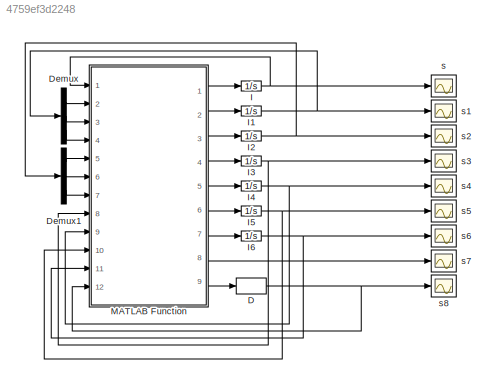
MODEL slx_4759ef3d2248
KIND model
CONFIG AbsTol = auto
CONFIG EnableMultiTasking = off
CONFIG FixedStep = auto
CONFIG MaxStep = auto
CONFIG MinStep = auto
CONFIG RelTol = 1e-3
CONFIG SampleTimeConstraint = Unconstrained
CONFIG Solver = VariableStepAuto
CONFIG SolverName = VariableStepAuto
CONFIG StartTime = 0.0
CONFIG StopTime = 10.0
BLOCK [Derivative] D
BLOCK [Demux] Demux
  DisplayOption = bar
  Outputs = 3
  Ports = [1, 3]
BLOCK [Demux] Demux1
  DisplayOption = bar
  Outputs = 3
  Ports = [1, 3]
BLOCK [Integrator] I
  InitialCondition = 0.8224
  Ports = [1, 1]
BLOCK [Integrator] I1
  InitialCondition = [0.2226 0.4397 0.3604]'
  Ports = [1, 1]
BLOCK [Integrator] I2
  InitialCondition = [-1.5 -5.8 -6.8]'
  Ports = [1, 1]
BLOCK [Integrator] I3
  InitialCondition = [0.5 0.2 0.3]'
  Ports = [1, 1]
BLOCK [Integrator] I4
  InitialCondition = [0.5 0.2 0.3]'
  Ports = [1, 1]
BLOCK [Integrator] I5
  InitialCondition = [1 0 0;0 1 0;0 0 1]
  Ports = [1, 1]
BLOCK [Integrator] I6
  InitialCondition = [1 0 0;0 1 0;0 0 1]
  Ports = [1, 1]
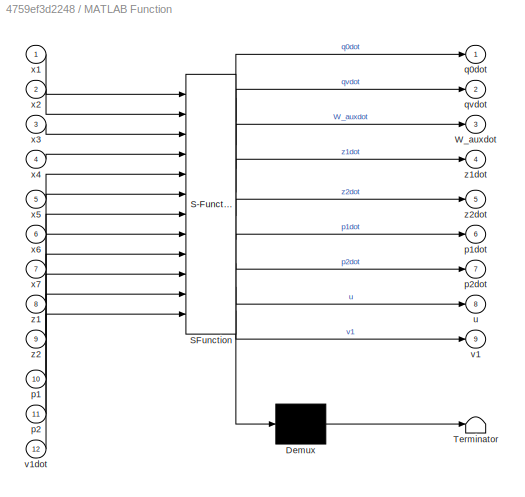
BLOCK [SubSystem] MATLAB Function
  ErrorFcn = Stateflow.Translate.translate
  PermitHierarchicalResolution = ExplicitOnly
  Ports = [12, 9]
  RequestExecContextInheritance = off
  SFBlockType = MATLAB Function
  TreatAsAtomicUnit = on
  Variant = off
BLOCK [Demux] MATLAB Function/ Demux 
  Outputs = 1
  Ports = [1, 1]
BLOCK [S-Function] MATLAB Function/ SFunction 
  EnableBusSupport = on
  FunctionName = sf_sfun
  PortCounts = [12 10]
  Ports = [12, 10]
  SFcnIsStateOwnerBlock = off
  SFunctionDeploymentMode = off
  Tag = Stateflow S-Function OBC2v1dot 4
BLOCK [Terminator] MATLAB Function/ Terminator 
BLOCK [Outport] MATLAB Function/W_auxdot
  IconDisplay = Port number
  Port = 3
BLOCK [Inport] MATLAB Function/p1
  IconDisplay = Port number
  Port = 10
BLOCK [Outport] MATLAB Function/p1dot
  IconDisplay = Port number
  Port = 6
BLOCK [Inport] MATLAB Function/p2
  IconDisplay = Port number
  Port = 11
BLOCK [Outport] MATLAB Function/p2dot
  IconDisplay = Port number
  Port = 7
BLOCK [Outport] MATLAB Function/q0dot
  IconDisplay = Port number
BLOCK [Outport] MATLAB Function/qvdot
  IconDisplay = Port number
  Port = 2
BLOCK [Outport] MATLAB Function/u
  IconDisplay = Port number
  Port = 8
BLOCK [Outport] MATLAB Function/v1
  IconDisplay = Port number
  Port = 9
BLOCK [Inport] MATLAB Function/v1dot
  IconDisplay = Port number
  Port = 12
BLOCK [Inport] MATLAB Function/x1
  IconDisplay = Port number
BLOCK [Inport] MATLAB Function/x2
  IconDisplay = Port number
  Port = 2
BLOCK [Inport] MATLAB Function/x3
  IconDisplay = Port number
  Port = 3
BLOCK [Inport] MATLAB Function/x4
  IconDisplay = Port number
  Port = 4
BLOCK [Inport] MATLAB Function/x5
  IconDisplay = Port number
  Port = 5
BLOCK [Inport] MATLAB Function/x6
  IconDisplay = Port number
  Port = 6
BLOCK [Inport] MATLAB Function/x7
  IconDisplay = Port number
  Port = 7
BLOCK [Inport] MATLAB Function/z1
  IconDisplay = Port number
  Port = 8
BLOCK [Outport] MATLAB Function/z1dot
  IconDisplay = Port number
  Port = 4
BLOCK [Inport] MATLAB Function/z2
  IconDisplay = Port number
  Port = 9
BLOCK [Outport] MATLAB Function/z2dot
  IconDisplay = Port number
  Port = 5
BLOCK [Scope] s
  NumInputPorts = 1
  Ports = [1]
  ScopeSpecificationString = Simulink.scopes.TimeScopeBlockCfg('CurrentConfiguration', extmgr.ConfigurationSet(extmgr.Configuration('Core','General UI',true),extmgr.Configuration('Core','Source UI',true),extmgr.Configuration('Sources','WiredSimulink',true),extmgr.Configuration('Visuals','Time Domain',true),extmgr.Configuration('Tools','Plot Navigation',true),extmgr.Configuration('Tools','Measurements',true)),'Version','2017a'...<+1ch>
BLOCK [Scope] s1
  NumInputPorts = 1
  Ports = [1]
  ScopeSpecificationString = Simulink.scopes.TimeScopeBlockCfg('CurrentConfiguration', extmgr.ConfigurationSet(extmgr.Configuration('Core','General UI',true),extmgr.Configuration('Core','Source UI',true),extmgr.Configuration('Sources','WiredSimulink',true,'DataLoggingVariableName','ScopeData1'),extmgr.Configuration('Visuals','Time Domain',true),extmgr.Configuration('Tools','Plot Navigation',true),extmgr.Configuration('Tools',...<+58ch>
BLOCK [Scope] s2
  NumInputPorts = 1
  Ports = [1]
  ScopeSpecificationString = Simulink.scopes.TimeScopeBlockCfg('CurrentConfiguration', extmgr.ConfigurationSet(extmgr.Configuration('Core','General UI',true),extmgr.Configuration('Core','Source UI',true),extmgr.Configuration('Sources','WiredSimulink',true,'DataLoggingVariableName','ScopeData2'),extmgr.Configuration('Visuals','Time Domain',true),extmgr.Configuration('Tools','Plot Navigation',true),extmgr.Configuration('Tools',...<+40ch>
BLOCK [Scope] s3
  NumInputPorts = 1
  Ports = [1]
  ScopeSpecificationString = Simulink.scopes.TimeScopeBlockCfg('CurrentConfiguration', extmgr.ConfigurationSet(extmgr.Configuration('Core','General UI',true),extmgr.Configuration('Core','Source UI',true),extmgr.Configuration('Sources','WiredSimulink',true,'DataLoggingVariableName','ScopeData3'),extmgr.Configuration('Visuals','Time Domain',true),extmgr.Configuration('Tools','Plot Navigation',true),extmgr.Configuration('Tools',...<+40ch>
BLOCK [Scope] s4
  NumInputPorts = 1
  Ports = [1]
  ScopeSpecificationString = Simulink.scopes.TimeScopeBlockCfg('CurrentConfiguration', extmgr.ConfigurationSet(extmgr.Configuration('Core','General UI',true),extmgr.Configuration('Core','Source UI',true),extmgr.Configuration('Sources','WiredSimulink',true,'DataLoggingVariableName','ScopeData4'),extmgr.Configuration('Visuals','Time Domain',true),extmgr.Configuration('Tools','Plot Navigation',true),extmgr.Configuration('Tools',...<+40ch>
BLOCK [Scope] s5
  NumInputPorts = 1
  Ports = [1]
  ScopeSpecificationString = Simulink.scopes.TimeScopeBlockCfg('CurrentConfiguration', extmgr.ConfigurationSet(extmgr.Configuration('Core','General UI',true),extmgr.Configuration('Core','Source UI',true),extmgr.Configuration('Sources','WiredSimulink',true,'DataLoggingVariableName','ScopeData5'),extmgr.Configuration('Visuals','Time Domain',true),extmgr.Configuration('Tools','Plot Navigation',true),extmgr.Configuration('Tools',...<+40ch>
BLOCK [Scope] s6
  NumInputPorts = 1
  Ports = [1]
  ScopeSpecificationString = Simulink.scopes.TimeScopeBlockCfg('CurrentConfiguration', extmgr.ConfigurationSet(extmgr.Configuration('Core','General UI',true),extmgr.Configuration('Core','Source UI',true),extmgr.Configuration('Sources','WiredSimulink',true,'DataLoggingVariableName','ScopeData6'),extmgr.Configuration('Visuals','Time Domain',true),extmgr.Configuration('Tools','Plot Navigation',true),extmgr.Configuration('Tools',...<+40ch>
BLOCK [Scope] s7
  NumInputPorts = 1
  Ports = [1]
  ScopeSpecificationString = Simulink.scopes.TimeScopeBlockCfg('CurrentConfiguration', extmgr.ConfigurationSet(extmgr.Configuration('Core','General UI',true),extmgr.Configuration('Core','Source UI',true),extmgr.Configuration('Sources','WiredSimulink',true,'DataLoggingVariableName','ScopeData7'),extmgr.Configuration('Visuals','Time Domain',true),extmgr.Configuration('Tools','Plot Navigation',true),extmgr.Configuration('Tools',...<+40ch>
BLOCK [Scope] s8
  NumInputPorts = 1
  Ports = [1]
  ScopeSpecificationString = Simulink.scopes.TimeScopeBlockCfg('CurrentConfiguration', extmgr.ConfigurationSet(extmgr.Configuration('Core','General UI',true),extmgr.Configuration('Core','Source UI',true),extmgr.Configuration('Sources','WiredSimulink',true,'DataLoggingVariableName','ScopeData8'),extmgr.Configuration('Visuals','Time Domain',true),extmgr.Configuration('Tools','Plot Navigation',true),extmgr.Configuration('Tools',...<+40ch>
NET D:1 -> MATLAB Function:12, s8:1
LINE Demux1:1 -> MATLAB Function:5
LINE Demux1:2 -> MATLAB Function:6
LINE Demux1:3 -> MATLAB Function:7
LINE Demux:1 -> MATLAB Function:2
LINE Demux:2 -> MATLAB Function:3
LINE Demux:3 -> MATLAB Function:4
NET I1:1 -> Demux:1, s1:1
NET I2:1 -> Demux1:1, s2:1
NET I3:1 -> MATLAB Function:8, s3:1
NET I4:1 -> MATLAB Function:9, s4:1
NET I5:1 -> MATLAB Function:10, s5:1
NET I6:1 -> MATLAB Function:11, s6:1
NET I:1 -> MATLAB Function:1, s:1
LINE MATLAB Function:1 -> I:1
LINE MATLAB Function:2 -> I1:1
LINE MATLAB Function:3 -> I2:1
LINE MATLAB Function:4 -> I3:1
LINE MATLAB Function:5 -> I4:1
LINE MATLAB Function:6 -> I5:1
LINE MATLAB Function:7 -> I6:1
LINE MATLAB Function:8 -> s7:1
LINE MATLAB Function:9 -> D:1
note: NET lines group one-source signal fan-out (src -> all destinations, sorted); 1:1 wires keep LINE
CHART MATLAB Function states=1 transitions=1
  STATE_LABEL 'eML_blk_kernel()'
  STATE_LABEL 'SCRIPT:\nfunction [q0dot,qvdot,W_auxdot,z1dot,z2dot,p1dot,p2dot,u,v1] = fctt(x1,x2,x3,x4,x5,x6,x7,z1,z2,p1,p2,v1dot)\nQ0=0.8224;\nR1=0.1*eye(3,3);\nv=[0.0098,0.0098,0.0176];\nJ=diag(v);\n%R2=0.03*eye(3,3);\nIR2=33.3333*eye(3,3);\ngamma= 150;\nQ1=eye(3,3);\nQ2=eye(3,3);\nB2=102.0408*eye(3,3);%equation(20)\nG2=102.0408*eye(3,3);\nB22=102.0408*eye(3,3);\nW_d=[0;0;0];\n%----------------------------------------------...<+1508ch>'
